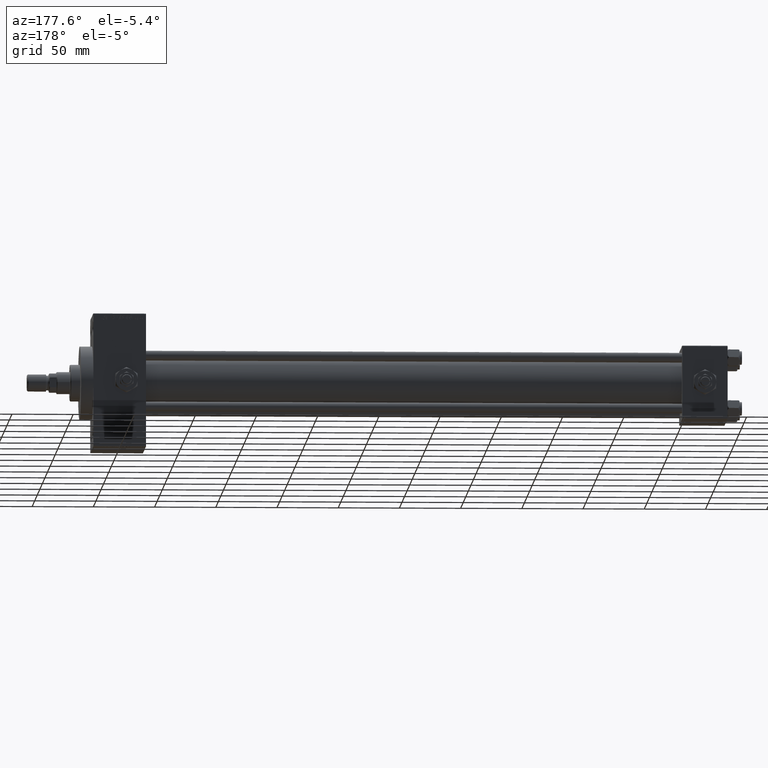
[diagram: clean part render]
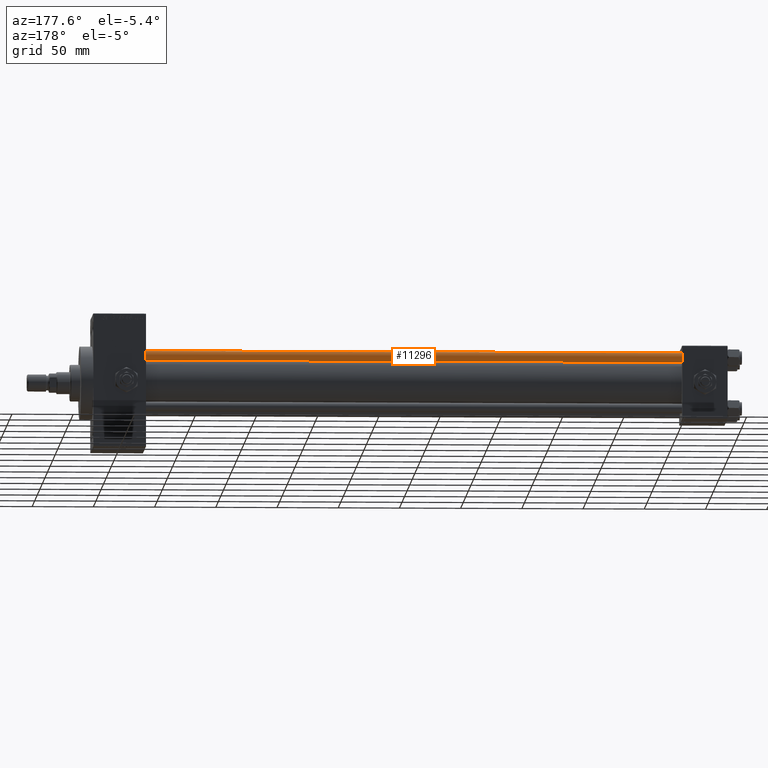
[diagram: same view with one face highlighted and labeled with its STEP entity id]
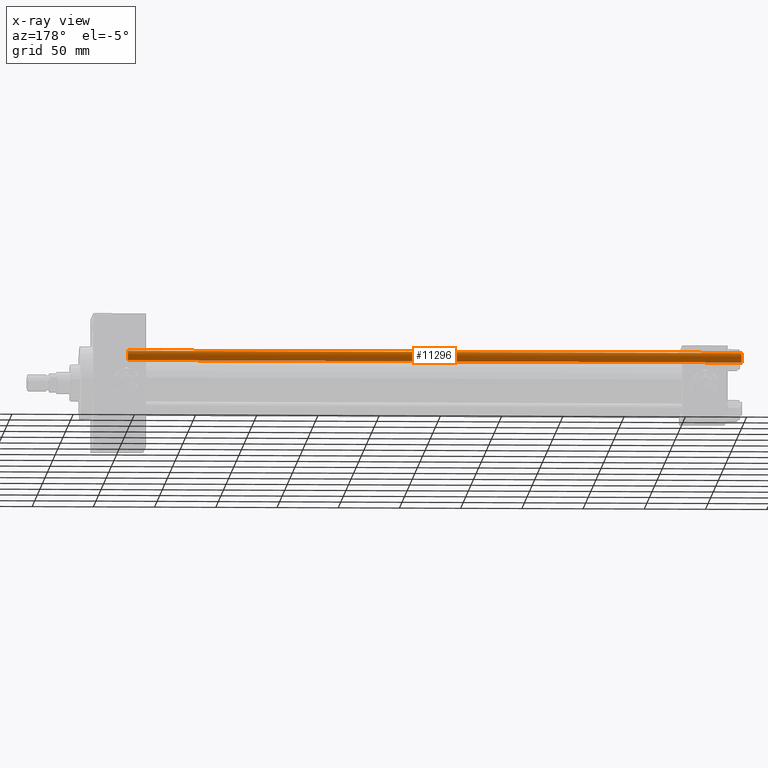
[diagram: x-ray of the same camera — body ghosted, the highlighted face saturated]
A machine part, auxiliary view. The second image highlights one B-rep face of the part: STEP entity #11296.
The next image is the same camera in x-ray: the body ghosted, the highlighted face saturated — about 0% of this face is hidden behind the body in this view.
In plain terms, the highlighted cylindrical surface (edge-blend (fillet) strip) has radius 4 mm, axis along (-1, -0, 0).
Its self-contained STEP definition (entity closure, byte-faithful):
#1310 = CARTESIAN_POINT ( 'NONE',  ( 4.000000000000000000, 4.898587196589412829E-16, 502.0000000000000000 ) ) ;
#1726 = EDGE_CURVE ( 'NONE', #7672, #25155, #3348, .T. ) ;
#3258 = EDGE_CURVE ( 'NONE', #7672, #15721, #12751, .T. ) ;
#3348 = CIRCLE ( 'NONE', #6536, 4.000000000000000000 ) ;
#6536 = AXIS2_PLACEMENT_3D ( 'NONE', #15351, #45788, #7792 ) ;
#6567 = DIRECTION ( 'NONE',  ( 1.000000000000000000, 0.000000000000000000, 0.000000000000000000 ) ) ;
#7672 = VERTEX_POINT ( 'NONE', #48176 ) ;
#7792 = DIRECTION ( 'NONE',  ( 1.000000000000000000, 0.000000000000000000, 0.000000000000000000 ) ) ;
#11296 = ADVANCED_FACE ( 'NONE', ( #32740 ), #14109, .T. ) ;
#12751 = LINE ( 'NONE', #32370, #22596 ) ;
#13492 = DIRECTION ( 'NONE',  ( -0.000000000000000000, -0.000000000000000000, -1.000000000000000000 ) ) ;
#14109 = CYLINDRICAL_SURFACE ( 'NONE', #18777, 4.000000000000000000 ) ;
#15351 = CARTESIAN_POINT ( 'NONE',  ( 0.000000000000000000, 0.000000000000000000, 501.4999999999999432 ) ) ;
#15721 = VERTEX_POINT ( 'NONE', #21075 ) ;
#15738 = CIRCLE ( 'NONE', #40610, 4.000000000000000000 ) ;
#17171 = DIRECTION ( 'NONE',  ( -1.000000000000000000, 0.000000000000000000, 0.000000000000000000 ) ) ;
#17657 = CARTESIAN_POINT ( 'NONE',  ( 0.000000000000000000, 0.000000000000000000, 502.0000000000000000 ) ) ;
#18455 = CARTESIAN_POINT ( 'NONE',  ( 4.000000000000000000, 4.898587196589412829E-16, 0.4999999999999449329 ) ) ;
#18777 = AXIS2_PLACEMENT_3D ( 'NONE', #17657, #40537, #17171 ) ;
#19374 = EDGE_LOOP ( 'NONE', ( #36729, #41673, #43040, #44647 ) ) ;
#21075 = CARTESIAN_POINT ( 'NONE',  ( -4.000000000000000000, 0.000000000000000000, 0.4999999999999449329 ) ) ;
#22596 = VECTOR ( 'NONE', #13492, 1000.000000000000000 ) ;
#24209 = EDGE_CURVE ( 'NONE', #25155, #42710, #39795, .T. ) ;
#25155 = VERTEX_POINT ( 'NONE', #33469 ) ;
#25695 = CARTESIAN_POINT ( 'NONE',  ( 0.000000000000000000, 0.000000000000000000, 0.4999999999999449329 ) ) ;
#29561 = VECTOR ( 'NONE', #43317, 1000.000000000000000 ) ;
#32370 = CARTESIAN_POINT ( 'NONE',  ( -4.000000000000000000, 0.000000000000000000, 502.0000000000000000 ) ) ;
#32740 = FACE_OUTER_BOUND ( 'NONE', #19374, .T. ) ;
#33469 = CARTESIAN_POINT ( 'NONE',  ( 4.000000000000000000, 4.898587196589412829E-16, 501.4999999999999432 ) ) ;
#36729 = ORIENTED_EDGE ( 'NONE', *, *, #1726, .T. ) ;
#39381 = EDGE_CURVE ( 'NONE', #42710, #15721, #15738, .T. ) ;
#39795 = LINE ( 'NONE', #1310, #29561 ) ;
#40537 = DIRECTION ( 'NONE',  ( -0.000000000000000000, -0.000000000000000000, -1.000000000000000000 ) ) ;
#40610 = AXIS2_PLACEMENT_3D ( 'NONE', #25695, #45309, #6567 ) ;
#41673 = ORIENTED_EDGE ( 'NONE', *, *, #24209, .T. ) ;
#42710 = VERTEX_POINT ( 'NONE', #18455 ) ;
#43040 = ORIENTED_EDGE ( 'NONE', *, *, #39381, .T. ) ;
#43317 = DIRECTION ( 'NONE',  ( -0.000000000000000000, -0.000000000000000000, -1.000000000000000000 ) ) ;
#44647 = ORIENTED_EDGE ( 'NONE', *, *, #3258, .F. ) ;
#45309 = DIRECTION ( 'NONE',  ( -0.000000000000000000, -0.000000000000000000, 1.000000000000000000 ) ) ;
#45788 = DIRECTION ( 'NONE',  ( 0.000000000000000000, 0.000000000000000000, -1.000000000000000000 ) ) ;
#48176 = CARTESIAN_POINT ( 'NONE',  ( -4.000000000000000000, 0.000000000000000000, 501.4999999999999432 ) ) ;